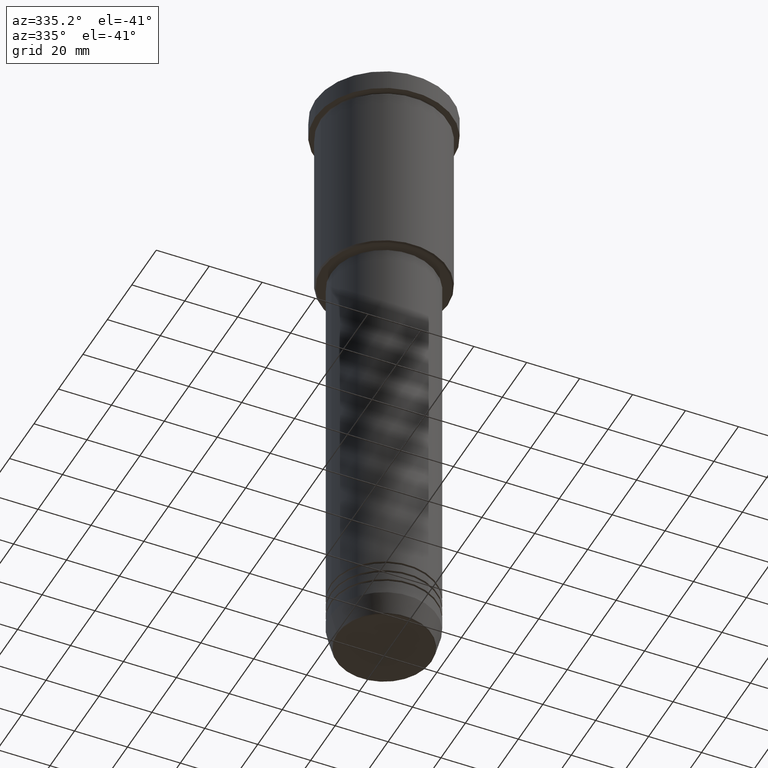
[diagram: clean part render]
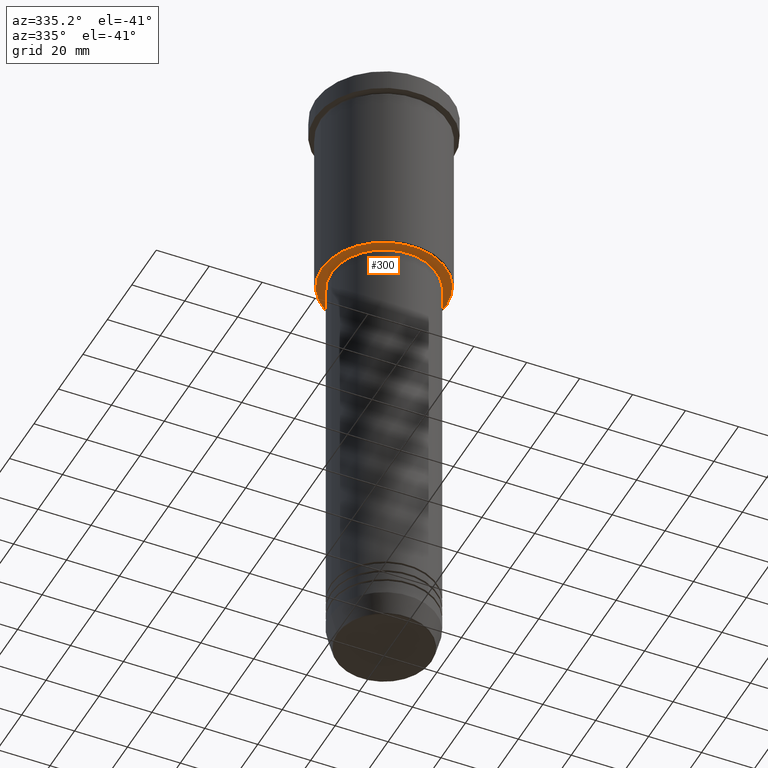
[diagram: same view with one face highlighted and labeled with its STEP entity id]
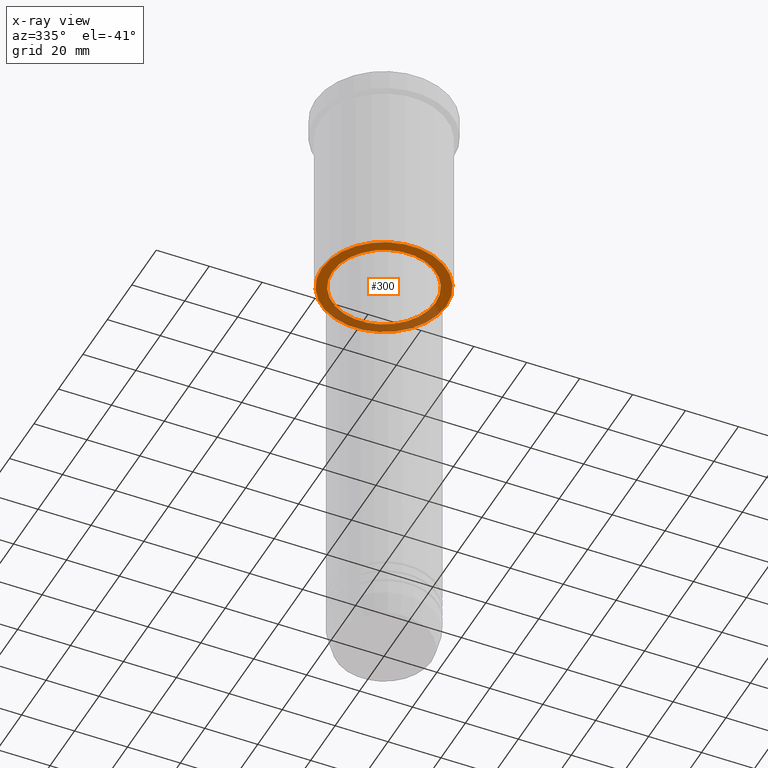
[diagram: x-ray of the same camera — body ghosted, the highlighted face saturated]
A machine part, auxiliary view. The second image highlights one B-rep face of the part: STEP entity #300.
The next image is the same camera in x-ray: the body ghosted, the highlighted face saturated — about 32% of this face is hidden behind the body in this view.
In plain terms, the highlighted planar face has unit normal (0, 0, -1).
Its self-contained STEP definition (entity closure, byte-faithful):
#9 = CARTESIAN_POINT ( 'NONE',  ( -23.49999999999998934, 2.908536147974963319E-15, -75.99999999999998579 ) ) ;
#30 = EDGE_CURVE ( 'NONE', #272, #905, #383, .T. ) ;
#52 = AXIS2_PLACEMENT_3D ( 'NONE', #428, #608, #1003 ) ;
#66 = DIRECTION ( 'NONE',  ( 0.000000000000000000, 0.000000000000000000, -1.000000000000000000 ) ) ;
#92 = CARTESIAN_POINT ( 'NONE',  ( -19.50000000000000355, 2.388061258337339333E-15, -75.99999999999998579 ) ) ;
#136 = ORIENTED_EDGE ( 'NONE', *, *, #871, .T. ) ;
#151 = CARTESIAN_POINT ( 'NONE',  ( 0.000000000000000000, 24.00000000000000000, -75.99999999999998579 ) ) ;
#170 = CIRCLE ( 'NONE', #52, 23.49999999999998934 ) ;
#185 = CIRCLE ( 'NONE', #1124, 19.50000000000000355 ) ;
#238 = FACE_OUTER_BOUND ( 'NONE', #1160, .T. ) ;
#272 = VERTEX_POINT ( 'NONE', #853 ) ;
#300 = ADVANCED_FACE ( 'NONE', ( #238, #588 ), #970, .T. ) ;
#325 = EDGE_LOOP ( 'NONE', ( #614, #136 ) ) ;
#343 = DIRECTION ( 'NONE',  ( -0.000000000000000000, -0.000000000000000000, 1.000000000000000000 ) ) ;
#361 = VERTEX_POINT ( 'NONE', #881 ) ;
#383 = CIRCLE ( 'NONE', #965, 19.50000000000000355 ) ;
#428 = CARTESIAN_POINT ( 'NONE',  ( 0.000000000000000000, 0.000000000000000000, -75.99999999999998579 ) ) ;
#467 = CARTESIAN_POINT ( 'NONE',  ( 0.000000000000000000, 0.000000000000000000, -75.99999999999998579 ) ) ;
#474 = DIRECTION ( 'NONE',  ( 1.000000000000000000, 0.000000000000000000, 0.000000000000000000 ) ) ;
#485 = CIRCLE ( 'NONE', #749, 23.49999999999998934 ) ;
#492 = ORIENTED_EDGE ( 'NONE', *, *, #755, .T. ) ;
#510 = DIRECTION ( 'NONE',  ( 0.000000000000000000, 0.000000000000000000, -1.000000000000000000 ) ) ;
#588 = FACE_BOUND ( 'NONE', #325, .T. ) ;
#608 = DIRECTION ( 'NONE',  ( 0.000000000000000000, 0.000000000000000000, -1.000000000000000000 ) ) ;
#614 = ORIENTED_EDGE ( 'NONE', *, *, #30, .T. ) ;
#715 = DIRECTION ( 'NONE',  ( 1.000000000000000000, 0.000000000000000000, 0.000000000000000000 ) ) ;
#723 = ORIENTED_EDGE ( 'NONE', *, *, #1178, .T. ) ;
#749 = AXIS2_PLACEMENT_3D ( 'NONE', #794, #66, #1183 ) ;
#755 = EDGE_CURVE ( 'NONE', #928, #361, #485, .T. ) ;
#794 = CARTESIAN_POINT ( 'NONE',  ( 0.000000000000000000, 0.000000000000000000, -75.99999999999998579 ) ) ;
#853 = CARTESIAN_POINT ( 'NONE',  ( 19.50000000000000355, 0.000000000000000000, -75.99999999999998579 ) ) ;
#868 = DIRECTION ( 'NONE',  ( -1.000000000000000000, 0.000000000000000000, -0.000000000000000000 ) ) ;
#871 = EDGE_CURVE ( 'NONE', #905, #272, #185, .T. ) ;
#881 = CARTESIAN_POINT ( 'NONE',  ( 23.49999999999998934, 0.000000000000000000, -75.99999999999998579 ) ) ;
#905 = VERTEX_POINT ( 'NONE', #92 ) ;
#920 = DIRECTION ( 'NONE',  ( -0.000000000000000000, -0.000000000000000000, 1.000000000000000000 ) ) ;
#928 = VERTEX_POINT ( 'NONE', #9 ) ;
#965 = AXIS2_PLACEMENT_3D ( 'NONE', #467, #920, #474 ) ;
#970 = PLANE ( 'NONE',  #1107 ) ;
#1003 = DIRECTION ( 'NONE',  ( -1.000000000000000000, 0.000000000000000000, 0.000000000000000000 ) ) ;
#1091 = CARTESIAN_POINT ( 'NONE',  ( 0.000000000000000000, 0.000000000000000000, -75.99999999999998579 ) ) ;
#1107 = AXIS2_PLACEMENT_3D ( 'NONE', #151, #510, #868 ) ;
#1124 = AXIS2_PLACEMENT_3D ( 'NONE', #1091, #343, #715 ) ;
#1160 = EDGE_LOOP ( 'NONE', ( #723, #492 ) ) ;
#1178 = EDGE_CURVE ( 'NONE', #361, #928, #170, .T. ) ;
#1183 = DIRECTION ( 'NONE',  ( -1.000000000000000000, 0.000000000000000000, 0.000000000000000000 ) ) ;